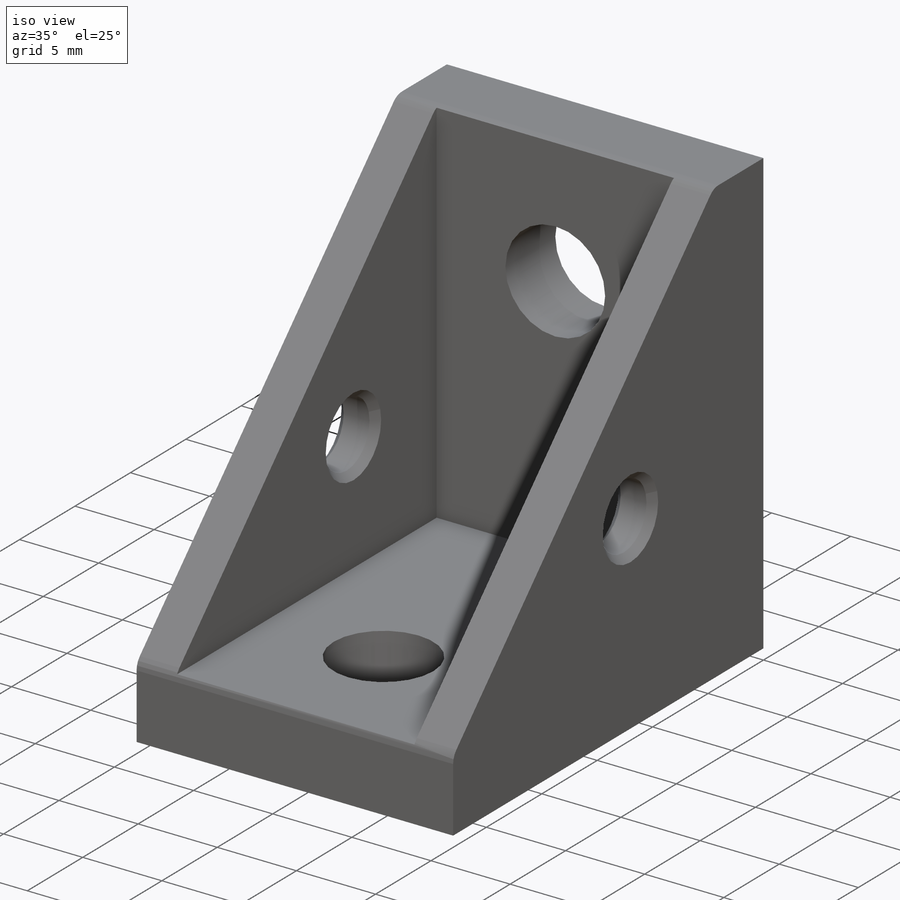
[diagram: iso view]
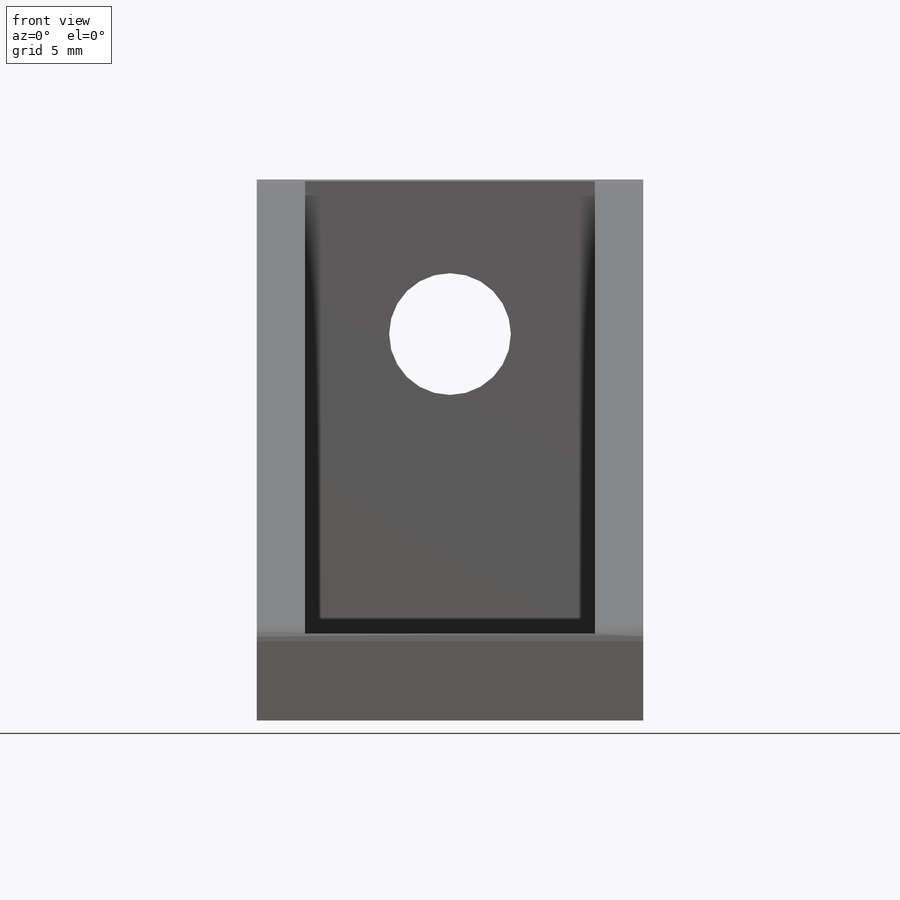
[diagram: front view]
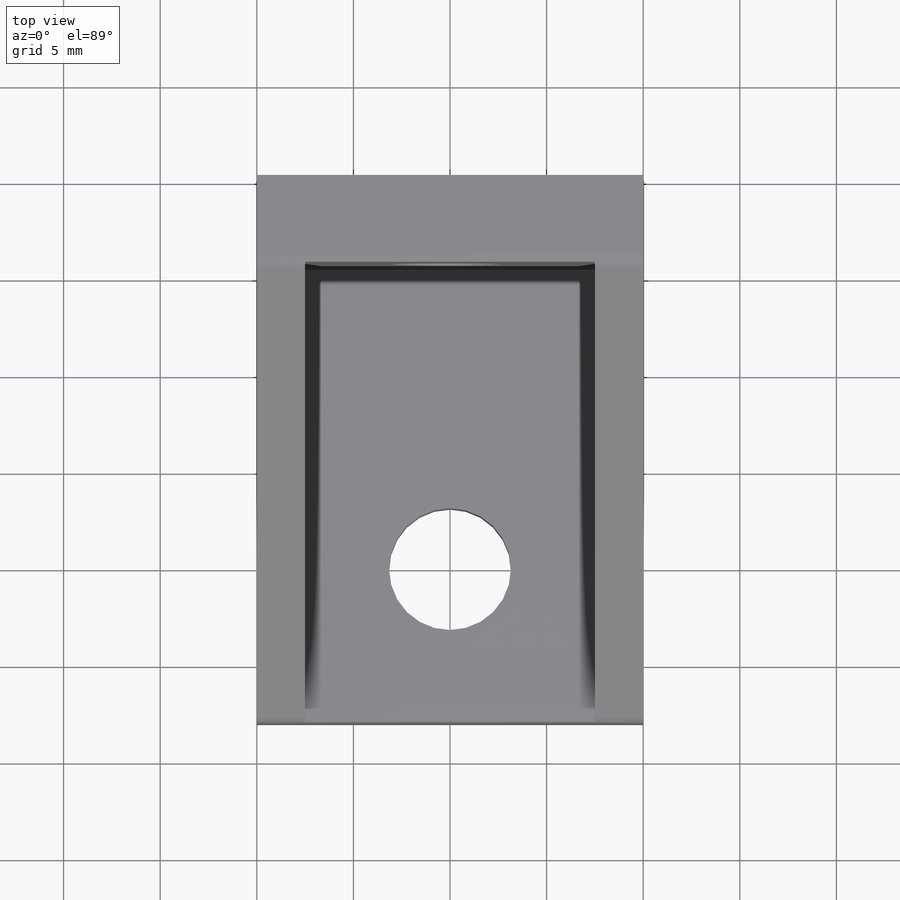
[diagram: top view]
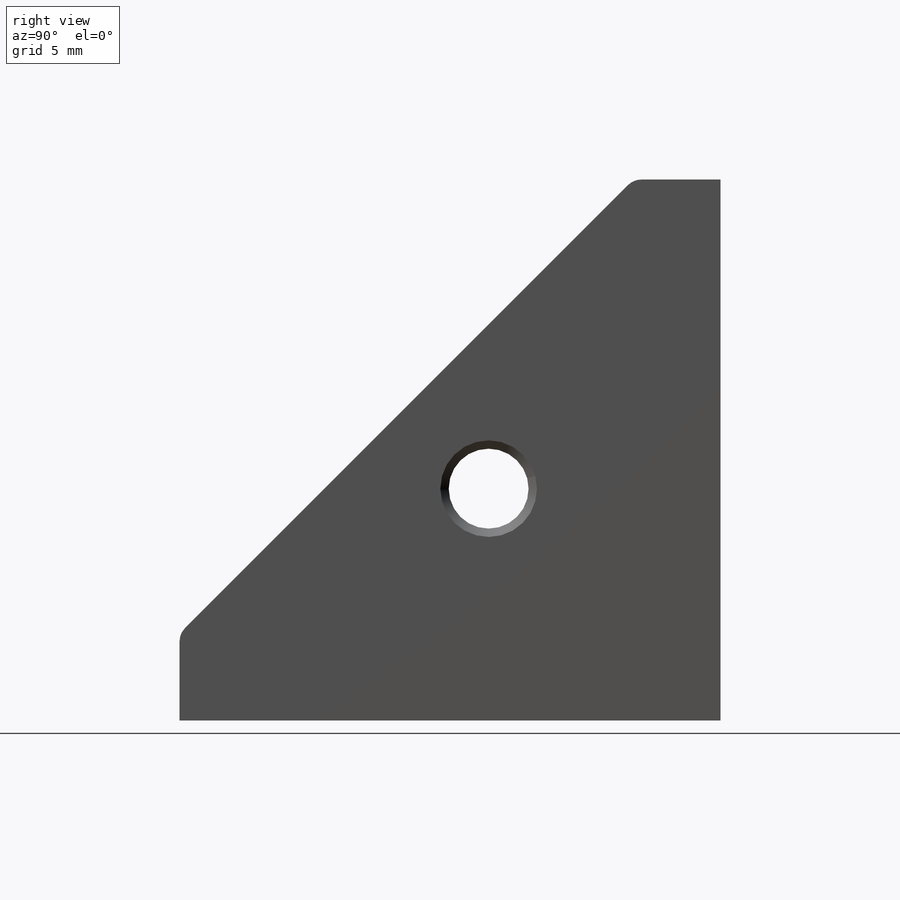
[diagram: right view]
SOLIDWORKS PART (.sldprt)
format: sldprt  version: not decoded by parser v0  size: 325,120 bytes
history: native  units: mm
features: sketch x14, plane x5, extrude x5, hole x4, material x1, cut_extrude x1, chamfer x1, fillet x1 (+9 scaffold rows collapsed)
feature tree (41):
  scaffold x9  (default folders/planes/origin — collapsed)
  material  "Material <not specified>"
  plane  "Piano frontale"
  plane  "Piano superiore"
  plane  "Piano destro"
  plane  "Plane1"
  sketch  "Sketch1"
  extrude  "Boss-Extrude1"  Depth=2.5mm
  plane  "Plane2"
  sketch  "Sketch2"
  extrude  "Boss-Extrude2"  Depth=23.5mm
  sketch  "Sketch3"
  extrude  "Boss-Extrude3"  Depth=4.5mm
  sketch  "Sketch4"
  extrude  "Boss-Extrude4"  Depth=4.5mm
  sketch  "Sketch5"
  cut_extrude  "Cut-Extrude1"  Depth=23.5mm
  sketch  "Sketch6"
  extrude  "Boss-Extrude5"  Depth=2.5mm
  hole  "M3.5 Clearance Hole1"  Diameter=4.134mm Depth=2.5mm
  sketch  "Sketch12"
  sketch  "Sketch11"  dims[hole-wizard template sketch: 59 standard entries collapsed; hole parameters kept: c18.Thru Hole Dia.=4.134mm c18.Thru Hole Depth=2.5mm]
  hole  "Ø6.3 (6.3) Diameter Hole1"  Diameter=6.3mm Depth=4.5mm
  sketch  "Sketch14"
  sketch  "Sketch13"  dims[hole-wizard template sketch: 59 standard entries collapsed; hole parameters kept: c18.Thru Hole Dia.=6.3mm c18.Thru Hole Depth=4.5mm]
  hole  "Ø6.3 (6.3) Diameter Hole2"  Diameter=6.3mm Depth=4.5mm
  sketch  "Sketch16"
  sketch  "Sketch15"  dims[hole-wizard template sketch: 59 standard entries collapsed; hole parameters kept: c18.Thru Hole Dia.=6.3mm c18.Thru Hole Depth=4.5mm]
  hole  "M3.5 Clearance Hole2"  Diameter=4.134mm Depth=20mm
  sketch  "Sketch18"
  sketch  "Sketch17"  dims[hole-wizard template sketch: 59 standard entries collapsed; hole parameters kept: c18.Thru Hole Dia.=4.134mm c18.Thru Hole Depth=20.0mm]
  chamfer  "Chamfer1"  Distance=0.433mm Angle=45deg
  fillet  "Fillet2"  Radius=1mm
decode coverage: 16 of 26 modeling features carry decoded parameters
note: ~ marks probable driven/reference dimensions
summary: Diameter pulled from absorbed wizard sketch
note: suppression state not decoded; provenance and decode notes live in map.json
